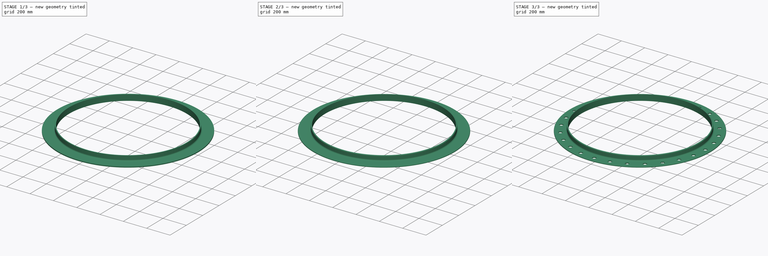
[diagram: build sequence overview — one tinted view per stage of 3, left to right]
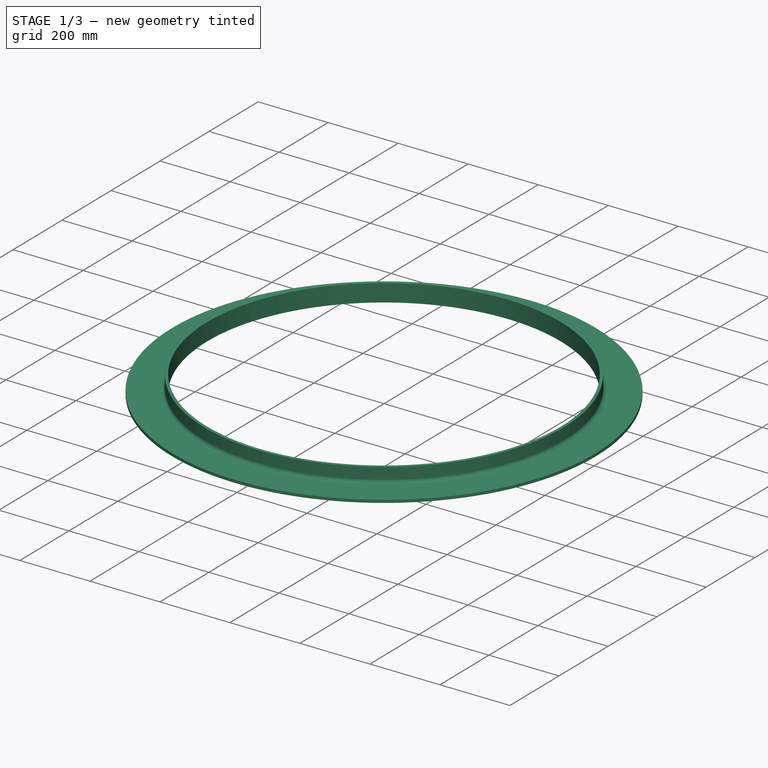
[diagram: stage 1 of 3 — iso view after this stage's code; geometry added in this stage tinted green]
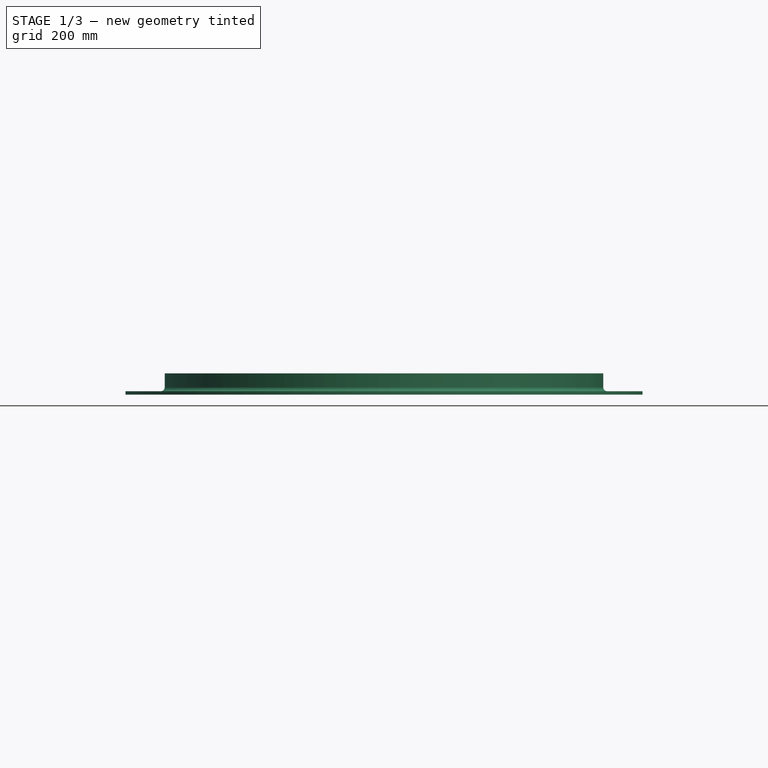
[diagram: stage 1 of 3 — front view after this stage's code; geometry added in this stage tinted green]
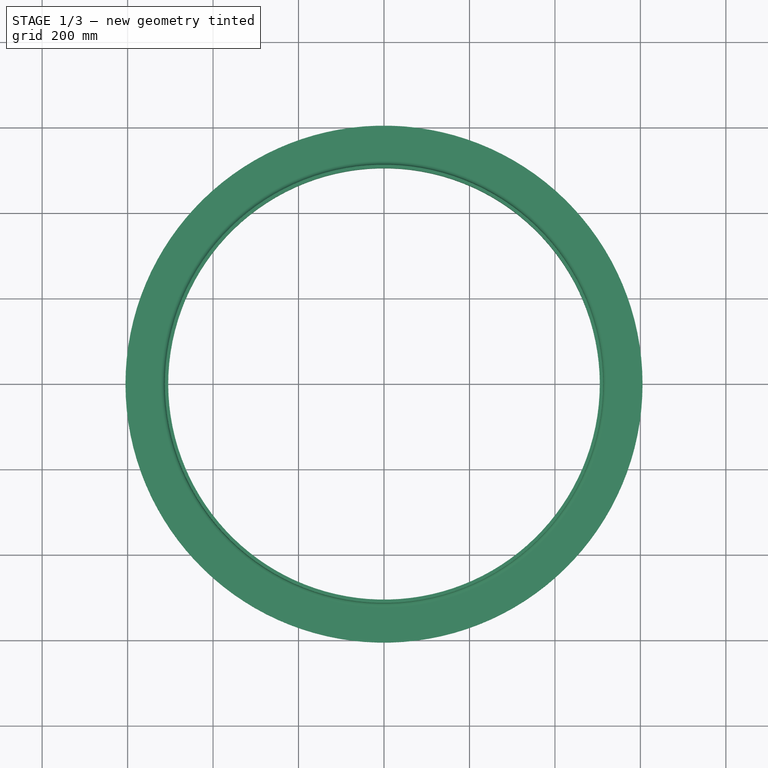
[diagram: stage 1 of 3 — top view after this stage's code; geometry added in this stage tinted green]
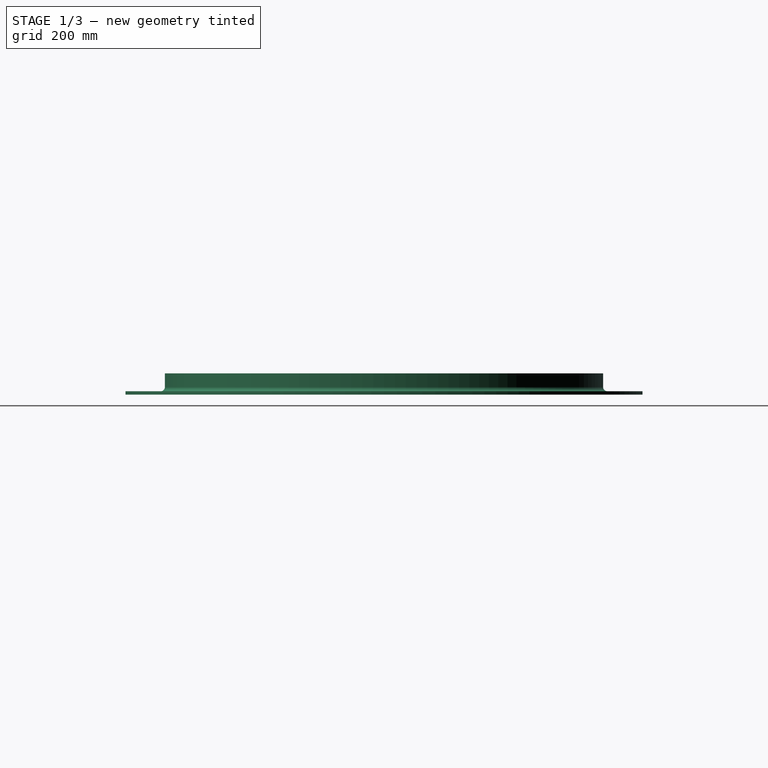
[diagram: stage 1 of 3 — right view after this stage's code; geometry added in this stage tinted green]
FCSTD DOCUMENT  (FreeCAD 0.19R24276 (Git))
Label: FLANGIA-PARAMETRICA-L
License: All rights reserved
LicenseURL: http://en.wikipedia.org/wiki/All_rights_reserved
objects: Sketcher::SketchObject×2, PartDesign::Fillet×2, Spreadsheet::Sheet×1, PartDesign::Revolution×1, PartDesign::Pocket×1, PartDesign::PolarPattern×1, PartDesign::Body×1, App::Part×1
note: 12 computed .brp shape members not serialized (recipe doc carries the construction recipe); baked Part::Feature solids carry a one-line shape summary decoded from their .brp

FEATURE [Spreadsheet::Sheet] Spreadsheet
  cells = A3=Feature Flange; A4=Nominal Diameter; B4=1000; C4=mm; D4=<- Data to be entered; A5=Sheet Metal Thickness; B5=5; C5=mm; D5=<- Data to be entered; A6=Drilling Diameter; B6=1120; C6=mm; D6=<- Data to be entered; A7=Nominal Radius; B7(NOMINALRADIUS)==(B4 + B5 * 2) / 2; C7=mm; D7=<- Calculated data; A8=Drilling Radius; B8(DRILLINGRADIUS)==B6 / 2; C8=mm; D8=<- Calculated data; A9=No Holes; B9(NOHOLES)=28; C9=No; D9=<- Data to be entered; A10=Holes Diameter; B10(HOLESDIAMETER)=30; C10=mm; D10=<- Data to be entered; A12=Feature Profile; A13=Height; B13(HEIGHT)=50; C13=mm; D13=<- Data to be entered; A14=Length; B14(LENGHT)=100; C14=mm; D14=<- Data to be entered; A15=Thickness; B15(THICKNESS)=8; C15=mm; D15=<- Data to be entered; A16=Inner Radius; B16(INNERRADIUS)=10; C16=mm; D16=<- Data to be entered; A17=External Radius; B17(EXTERNALRADIUS)=5; C17=mm; D17=<- Data to be entered; A19=Density; B19=7850; C19=Kg/m³; A20=Volume; B20==Body.Shape.Volume; C20=mm³; A21=Weight; B21==B20 / 1000 ^ 3 * B19; C21=kg
FEATURE [Sketcher::SketchObject] Sketch
  FullyConstrained = true
  MapMode = 5
  Placement = pos=(0,0,0) rot=(1,0,0;1.5708rad)
  Support = -> [XZ_Plane001]
  expr: Constraints[16] = Spreadsheet.THICKNESS
  expr: Constraints[15] = Spreadsheet.THICKNESS
  expr: Constraints[17] = Spreadsheet.NOMINALRADIUS
  expr: Constraints[14] = Spreadsheet.HEIGHT
  expr: Constraints[13] = Spreadsheet.LENGHT
  sketch-geometry (6):
    g0: LineSegment StartX=505 StartY=50 StartZ=0 EndX=505 EndY=0 EndZ=0
    g1: LineSegment StartX=505 StartY=0 StartZ=0 EndX=605 EndY=0 EndZ=0
    g2: LineSegment StartX=605 StartY=0 StartZ=0 EndX=605 EndY=8 EndZ=0
    g3: LineSegment StartX=605 StartY=8 StartZ=0 EndX=513 EndY=8 EndZ=0
    g4: LineSegment StartX=513 StartY=8 StartZ=0 EndX=513 EndY=50 EndZ=0
    g5: LineSegment StartX=513 StartY=50 StartZ=0 EndX=505 EndY=50 EndZ=0
  constraints (18):
    c: PointOnObject(g0,g-1)
    c: Vertical(g0)
    c: Coincident(g0,g1)
    c: Horizontal(g1)
    c: Coincident(g1,g2)
    c: Vertical(g2)
    c: Coincident(g2,g3)
    c: Horizontal(g3)
    c: Coincident(g3,g4)
    c: Vertical(g4)
    c: Coincident(g4,g5)
    c: Coincident(g5,g0)
    c: Horizontal(g5)
    c: DistanceX(g1,g1) = 100
    c: DistanceY(g0,g0) = 50
    c: DistanceY(g2,g2) = 8
    c: DistanceX(g5,g5) = 8
    c: DistanceX(g-1,g0) = 505
FEATURE [PartDesign::Revolution] Revolution
  Angle = 360
  Axis = (0,2e-16,1)
  Base = (0,0,0)
  Placement = pos=(0,0,0) rot=(1,0,0;1.5708rad)
  Profile = -> Sketch
  ReferenceAxis = -> Sketch [V_Axis]
  Reversed = true
FEATURE [PartDesign::Fillet] Fillet
  Base = -> Revolution [Edge7]
  BaseFeature = -> Revolution
  Placement = pos=(0,0,0) rot=(1,0,0;1.5708rad)
  Radius = 10
  SupportTransform = false
  expr: Radius = Spreadsheet.INNERRADIUS
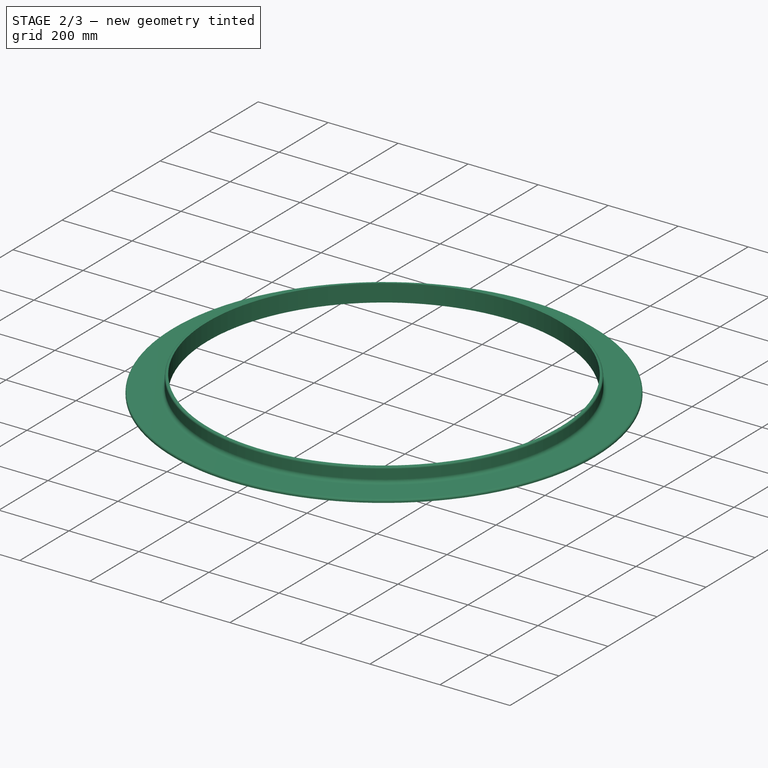
[diagram: stage 2 of 3 — iso view after this stage's code; geometry added in this stage tinted green]
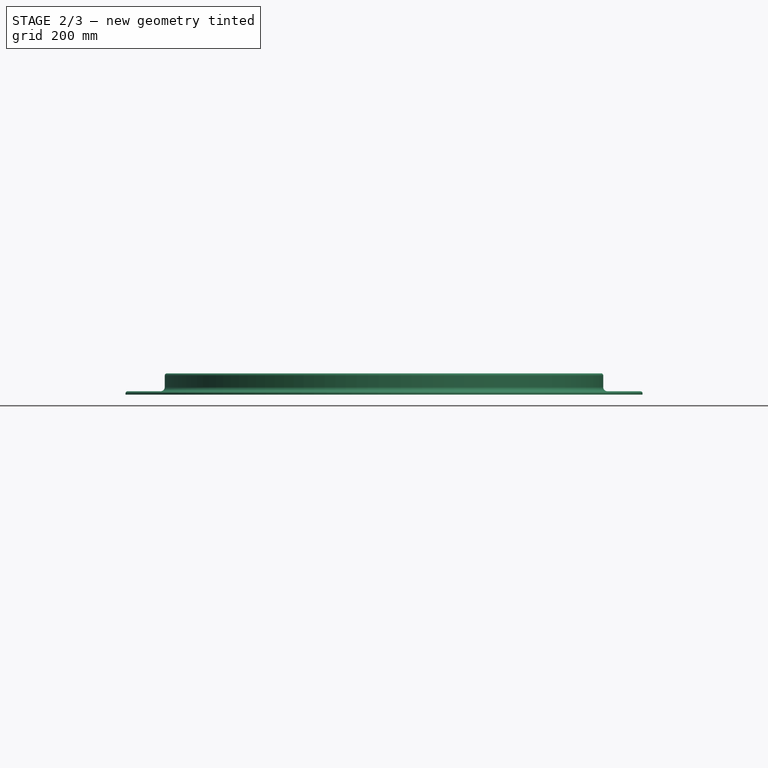
[diagram: stage 2 of 3 — front view after this stage's code; geometry added in this stage tinted green]
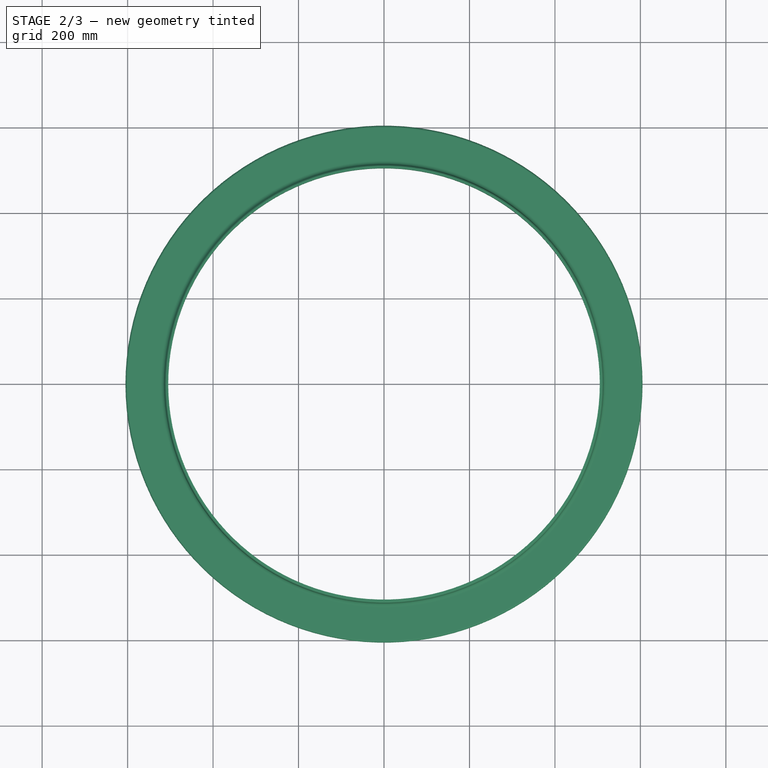
[diagram: stage 2 of 3 — top view after this stage's code; geometry added in this stage tinted green]
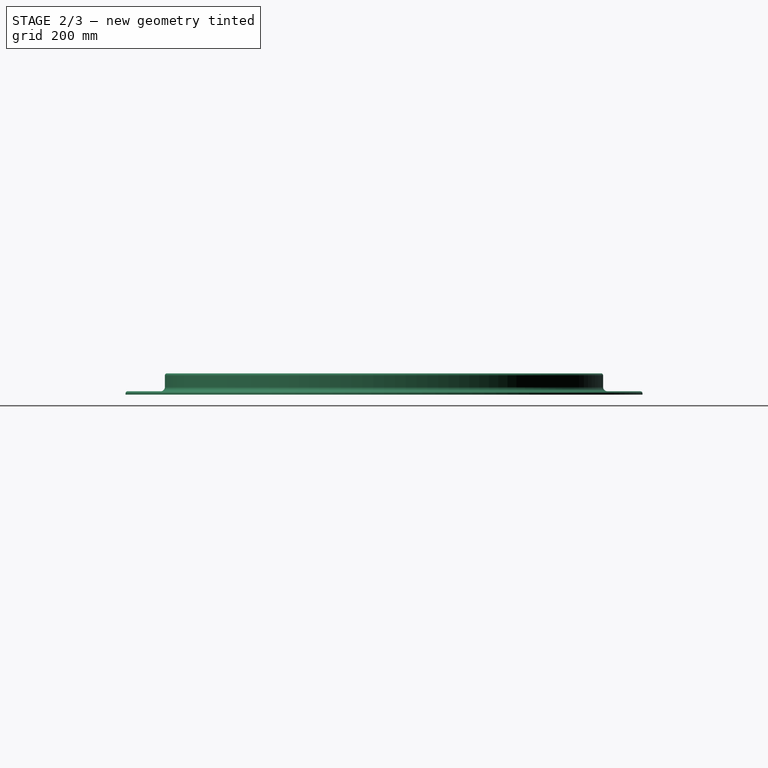
[diagram: stage 2 of 3 — right view after this stage's code; geometry added in this stage tinted green]
FEATURE [PartDesign::Fillet] Fillet001
  Base = -> Fillet [Edge2,Edge8]
  BaseFeature = -> Fillet
  Placement = pos=(0,0,0) rot=(1,0,0;1.5708rad)
  Radius = 5
  SupportTransform = false
  expr: Radius = Spreadsheet.EXTERNALRADIUS
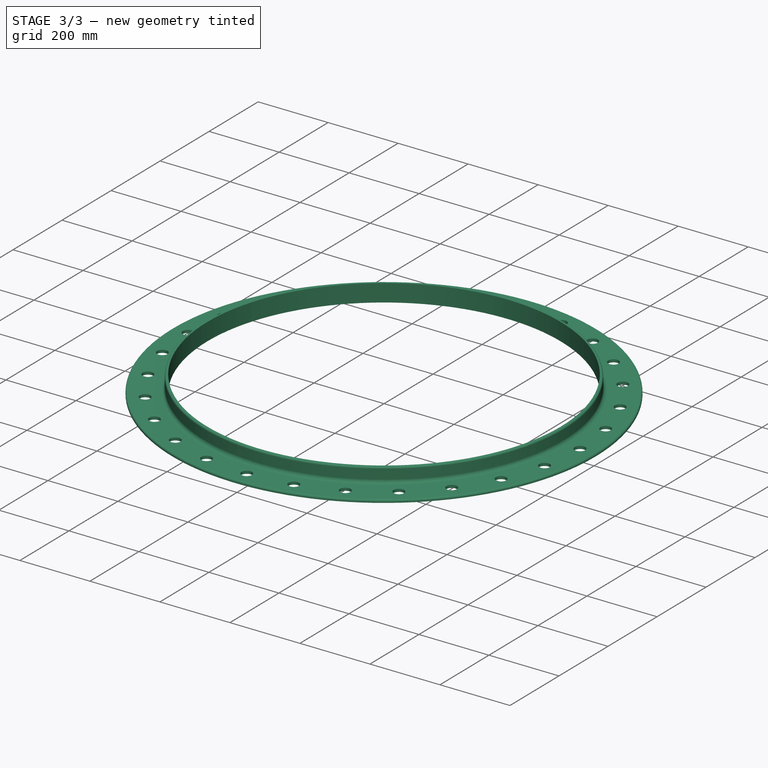
[diagram: stage 3 of 3 — iso view after this stage's code; geometry added in this stage tinted green]
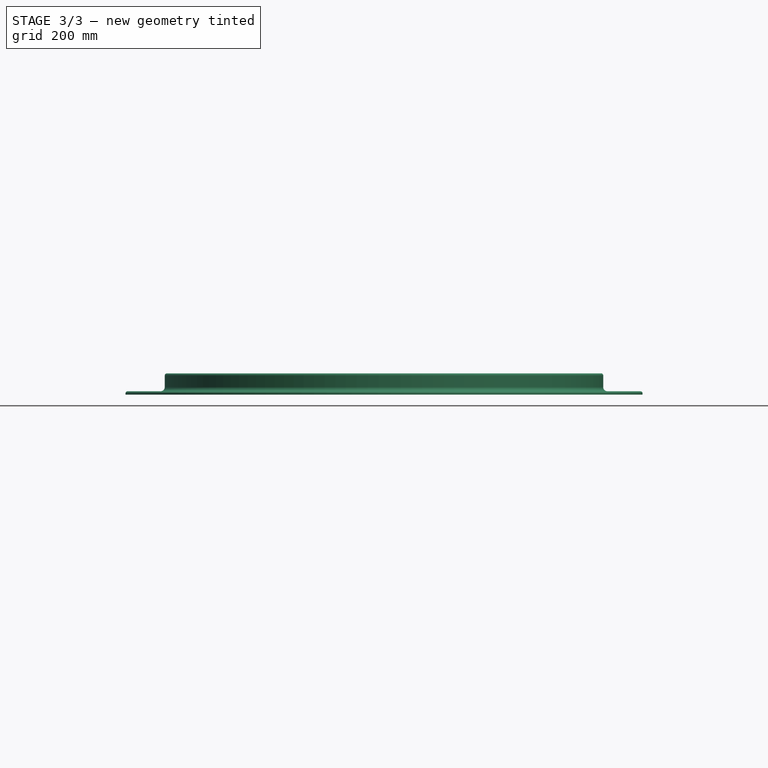
[diagram: stage 3 of 3 — front view after this stage's code; geometry added in this stage tinted green]
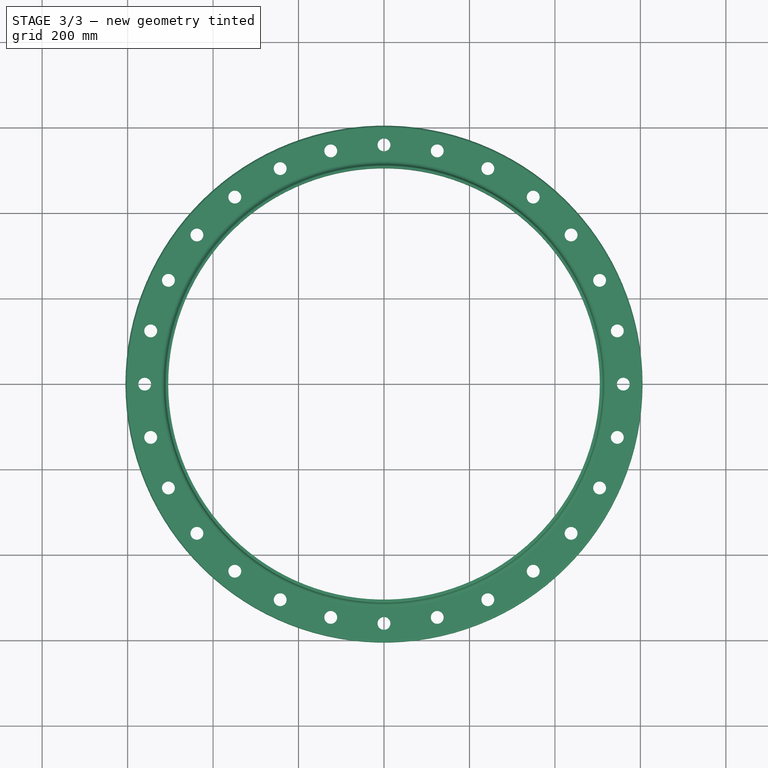
[diagram: stage 3 of 3 — top view after this stage's code; geometry added in this stage tinted green]
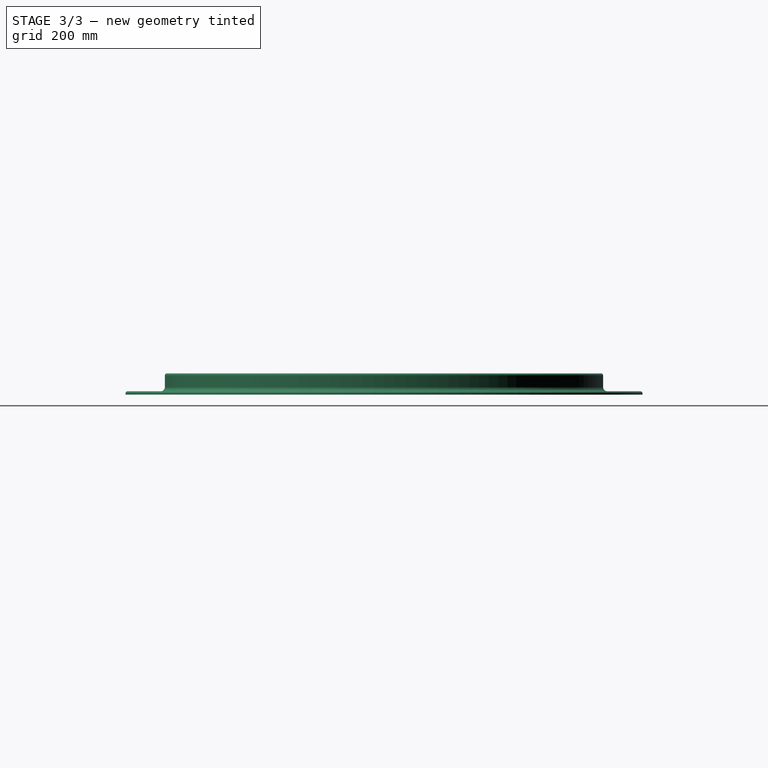
[diagram: stage 3 of 3 — right view after this stage's code; geometry added in this stage tinted green]
FEATURE [Sketcher::SketchObject] Sketch001
  FullyConstrained = true
  MapMode = 5
  Support = -> [XY_Plane001]
  expr: Constraints[2] = Spreadsheet.DRILLINGRADIUS
  expr: Constraints[1] = Spreadsheet.HOLESDIAMETER
  sketch-geometry (1):
    g0: Circle CenterX=0 CenterY=560 CenterZ=0 NormalX=0 NormalY=0 NormalZ=1 AngleXU=0 Radius=15
  constraints (3):
    c: PointOnObject(g0,g-2)
    c: Diameter(g0) = 30
    c: DistanceY(g-1,g0) = 560
FEATURE [PartDesign::Pocket] Pocket
  BaseFeature = -> Fillet001
  Length = 5
  Length2 = 100
  Placement = pos=(0,0,0) rot=(1,0,0;1.5708rad)
  Profile = -> Sketch001
  Reversed = true
  Type = 1
FEATURE [PartDesign::PolarPattern] PolarPattern
  Angle = 360
  Axis = -> Sketch001 [N_Axis]
  BaseFeature = -> Pocket
  Occurrences = 28
  Originals = -> [Pocket]
  Placement = pos=(0,0,0) rot=(1,0,0;1.5708rad)
  expr: Occurrences = Spreadsheet.NOHOLES
FEATURE [PartDesign::Body] Body
  Group = -> [Sketch,Revolution,Fillet,Fillet001,Sketch001,Pocket,PolarPattern]
  Origin = -> Origin001
  Tip = -> PolarPattern
FEATURE [App::Part] Part
  Group = -> [Body]
  Origin = -> Origin
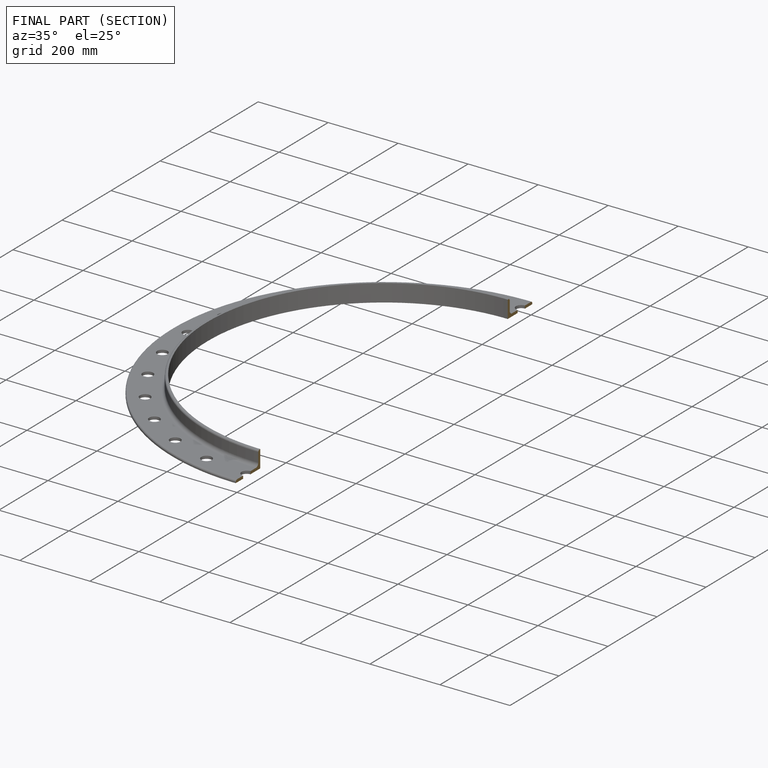
[diagram: finished part — half-section view (interior)]
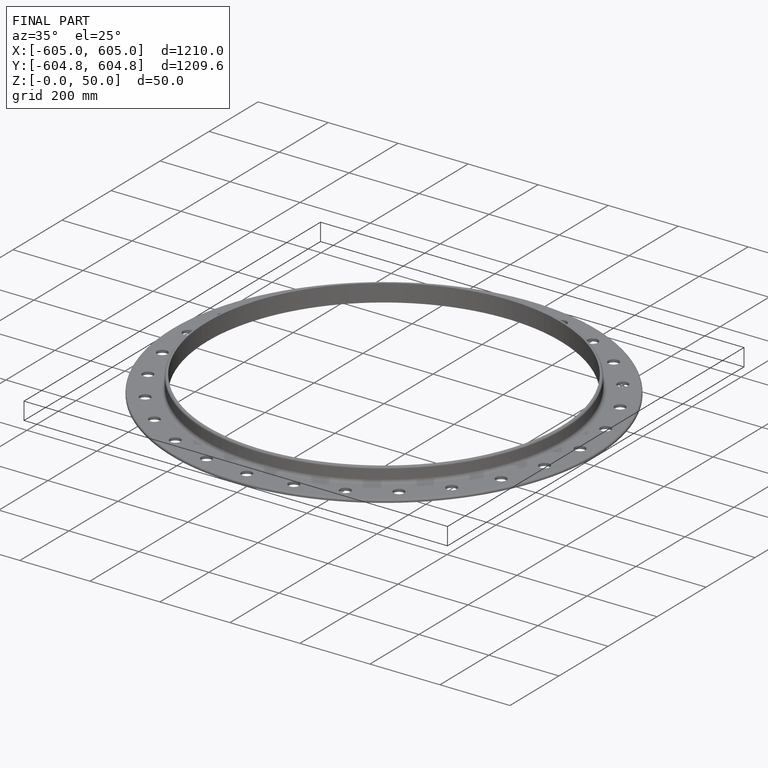
[diagram: finished part — iso view with bounding-box wireframe]
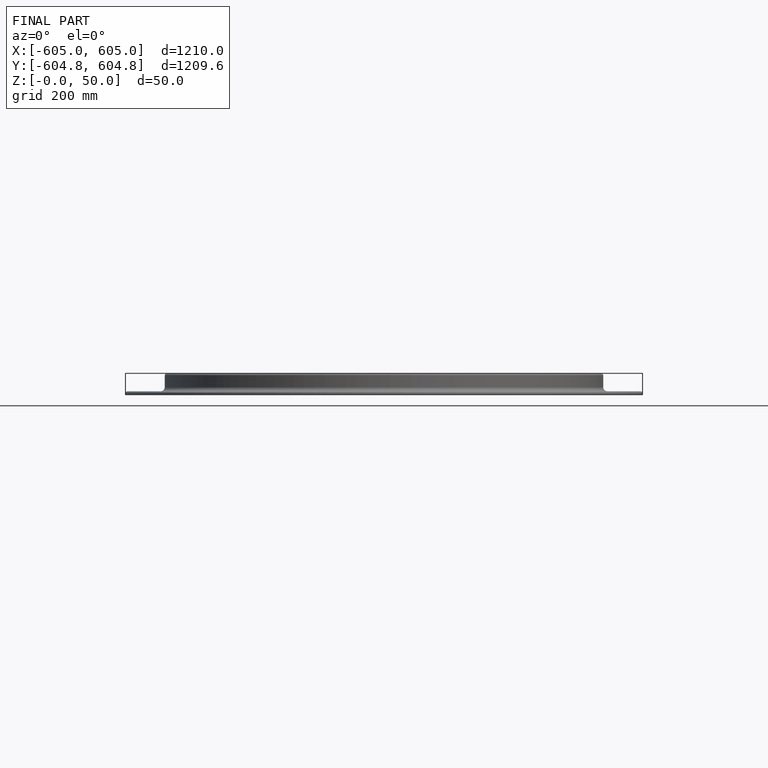
[diagram: finished part — front view with bounding-box wireframe]
